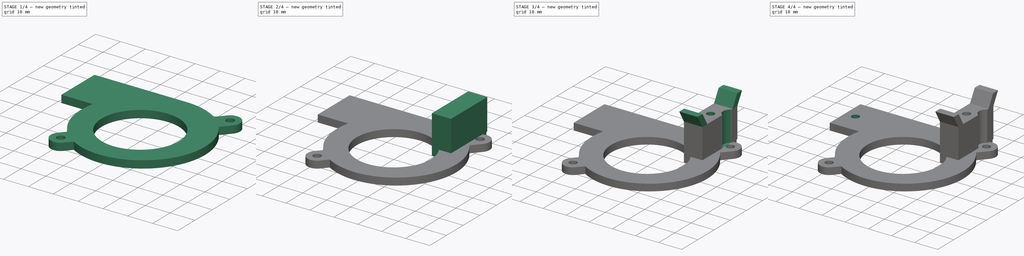
[diagram: build sequence overview — one tinted view per stage of 4, left to right]
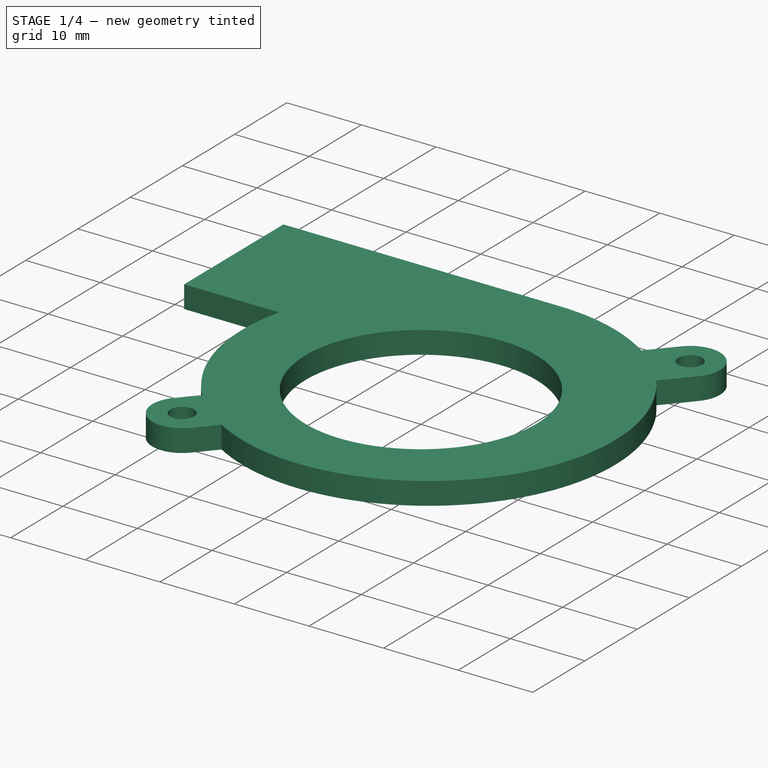
[diagram: stage 1 of 4 — iso view after this stage's code; geometry added in this stage tinted green]
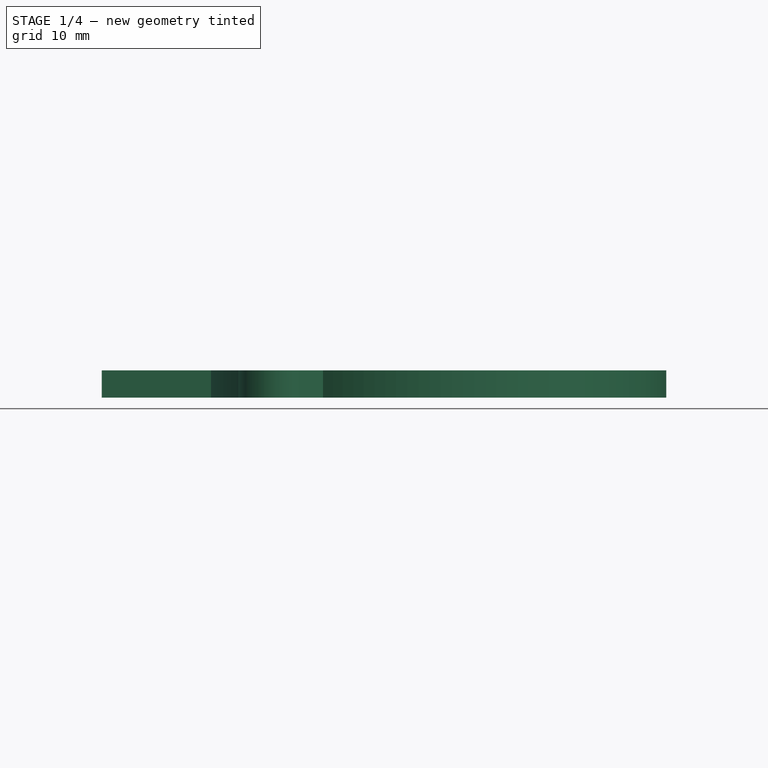
[diagram: stage 1 of 4 — front view after this stage's code; geometry added in this stage tinted green]
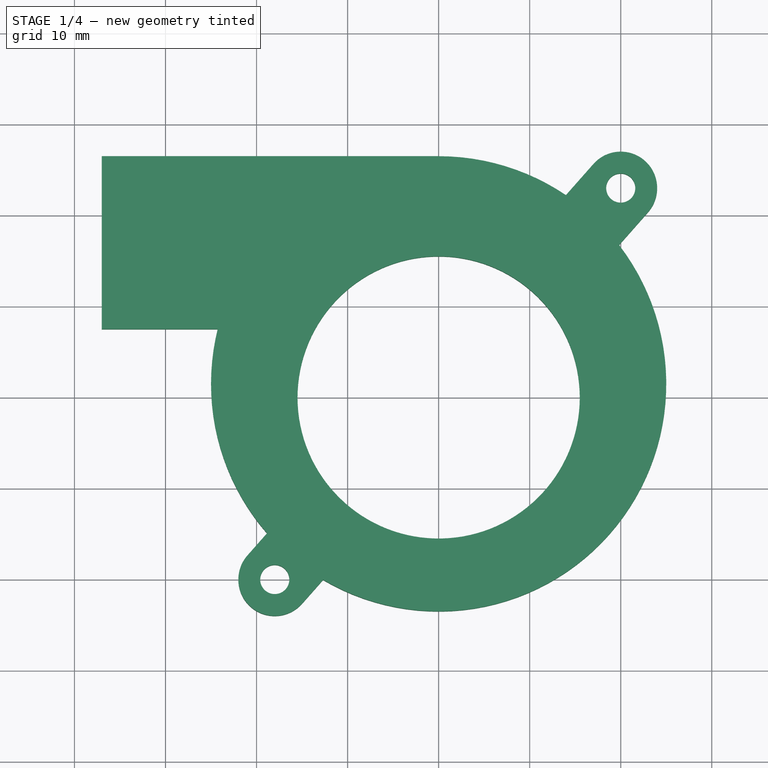
[diagram: stage 1 of 4 — top view after this stage's code; geometry added in this stage tinted green]
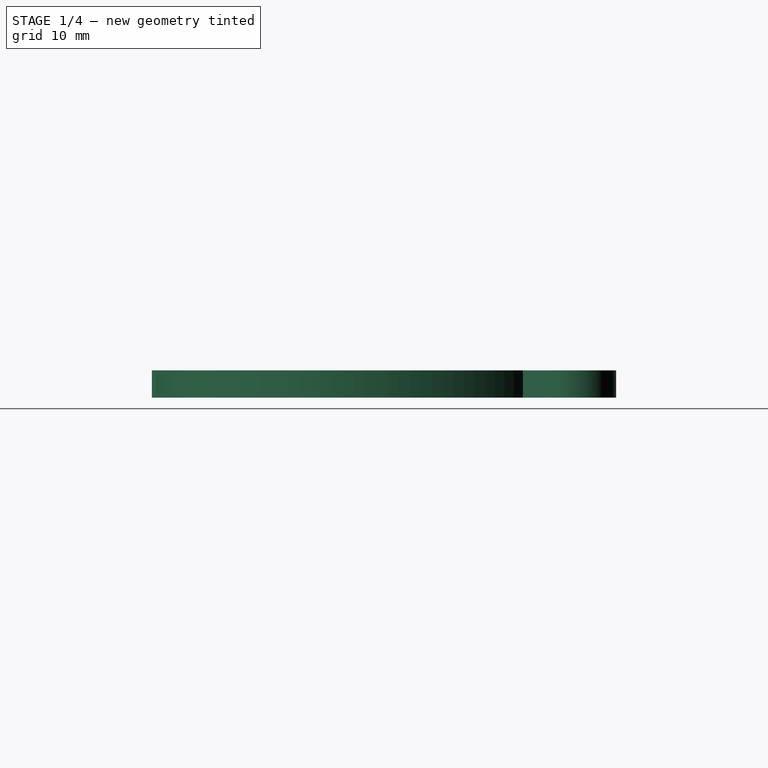
[diagram: stage 1 of 4 — right view after this stage's code; geometry added in this stage tinted green]
FCSTD DOCUMENT  (FreeCAD 0.20R)
Label: radialfan
License: All rights reserved
LicenseURL: http://en.wikipedia.org/wiki/All_rights_reserved
objects: Sketcher::SketchObject×7, PartDesign::Pad×5, PartDesign::Pocket×4, PartDesign::Body×1
note: 26 computed .brp shape members not serialized (recipe doc carries the construction recipe); baked Part::Feature solids carry a one-line shape summary decoded from their .brp

FEATURE [Sketcher::SketchObject] Sketch
  FullyConstrained = true
  MapMode = 5
  Support = -> [XY_Plane]
  sketch-geometry (19):
    g0: Circle CenterX=0 CenterY=0 CenterZ=0 NormalX=0 NormalY=0 NormalZ=1 AngleXU=0 Radius=15.5
    g1: Circle CenterX=-18 CenterY=-20 CenterZ=0 NormalX=0 NormalY=0 NormalZ=1 AngleXU=0 Radius=1.6
    g2: Circle CenterX=20 CenterY=23 CenterZ=0 NormalX=0 NormalY=0 NormalZ=1 AngleXU=0 Radius=1.6
    g3: LineSegment StartX=-25 StartY=26.5 StartZ=0 EndX=-25 EndY=7.5 EndZ=0
    g4: ArcOfCircle CenterX=3.1e-15 CenterY=1.5 CenterZ=0 NormalX=0 NormalY=0 NormalZ=1 AngleXU=0 Radius=25 StartAngle=0.977444 EndAngle=1.5708
    g5: LineSegment StartX=-25 StartY=26.5 StartZ=0 EndX=0 EndY=26.5 EndZ=0
    g6: LineSegment StartX=-25 StartY=7.5 StartZ=0 EndX=-24.2693 EndY=7.5 EndZ=0
    g7: ArcOfCircle CenterX=20 CenterY=23 CenterZ=0 NormalX=0 NormalY=0 NormalZ=1 AngleXU=0 Radius=4 StartAngle=5.55944 EndAngle=8.70103
    g8: LineSegment StartX=17.0027 StartY=25.6488 StartZ=0 EndX=22.9973 EndY=20.3512 EndZ=0
    g9: LineSegment StartX=17.0027 StartY=25.6488 StartZ=0 EndX=13.9786 EndY=22.2268 EndZ=0
    g10: LineSegment StartX=22.9973 StartY=20.3512 StartZ=0 EndX=19.8123 EndY=16.7471 EndZ=0
    g11: ArcOfCircle CenterX=3.1e-15 CenterY=1.5 CenterZ=0 NormalX=0 NormalY=0 NormalZ=1 AngleXU=0 Radius=25 StartAngle=4.17978 EndAngle=6.9391
    g12: ArcOfCircle CenterX=-18 CenterY=-20 CenterZ=0 NormalX=0 NormalY=0 NormalZ=1 AngleXU=0 Radius=4 StartAngle=2.41784 EndAngle=5.55944
    g13: LineSegment StartX=-20.9973 StartY=-17.3512 StartZ=0 EndX=-15.0027 EndY=-22.6488 EndZ=0
    g14: LineSegment StartX=-15.0027 StartY=-22.6488 StartZ=0 EndX=-12.6947 EndY=-20.0371 EndZ=0
    g15: LineSegment StartX=-20.9973 StartY=-17.3512 StartZ=0 EndX=-18.8502 EndY=-14.9216 EndZ=0
    g16: ArcOfCircle CenterX=3.1e-15 CenterY=1.5 CenterZ=0 NormalX=0 NormalY=0 NormalZ=1 AngleXU=0 Radius=25 StartAngle=2.89923 EndAngle=3.85824
    g17: LineSegment StartX=17.0027 StartY=25.6488 StartZ=0 EndX=-20.9973 EndY=-17.3512 EndZ=0
    g18: LineSegment StartX=22.9973 StartY=20.3512 StartZ=0 EndX=-15.0027 EndY=-22.6488 EndZ=0
  constraints (48):
    c: Coincident(g0,g-1)
    c: Diameter(g0) = 31
    c: Equal(g1,g2)
    c: Diameter(g2) = 3.2
    c: DistanceX(g-2,g2) = 20
    c: DistanceY(g-1,g2) = 23
    c: DistanceX(g-2,g1) = -18
    c: DistanceY(g-1,g1) = -20
    c: Vertical(g3)
    c: DistanceX(g-2,g3) = -25
    c: DistanceY(g-1,g3) = 26.5
    c: DistanceY(g3,g3) = 19
    c: Coincident(g5,g3)
    c: PointOnObject(g5,g-2)
    c: Horizontal(g5)
    c: Tangent(g4,g5) = 1.5708
    c: Radius(g4) = 25
    c: Coincident(g6,g3)
    c: Horizontal(g6)
    c: Coincident(g7,g2)
    c: Coincident(g8,g7)
    c: Coincident(g8,g7)
    c: PointOnObject(g2,g8)
    c: Coincident(g9,g4)
    c: Tangent(g9,g7) = -1.5708
    c: Tangent(g10,g7) = 1.5708
    c: Coincident(g11,g4)
    c: Coincident(g11,g10)
    c: Coincident(g12,g1)
    c: Equal(g12,g7)
    c: Coincident(g13,g12)
    c: Coincident(g13,g12)
    c: PointOnObject(g1,g13)
    c: Tangent(g14,g12) = -1.5708
    c: Tangent(g15,g12) = 1.5708
    c: Coincident(g11,g14)
    c: Coincident(g16,g4)
    c: Coincident(g16,g6)
    c: Coincident(g16,g15)
    c: Equal(g16,g11)
    c: Equal(g11,g4)
    c: Distance(g8) = 8
    c: Coincident(g17,g7)
    c: Coincident(g17,g12)
    c: Coincident(g18,g7)
    c: Coincident(g18,g12)
    c: Equal(g18,g17)
    c: Perpendicular(g13,g17)
FEATURE [PartDesign::Pad] Pad
  Direction = (0,0,1)
  Length = 3
  Length2 = 100
  Profile = -> Sketch
  ReferenceAxis = -> Sketch [N_Axis]
  Type = 0
FEATURE [PartDesign::Pad] Pad001
  BaseFeature = -> Pad
  Direction = (-1,0,0)
  Length = 12
  Length2 = 100
  Profile = -> Pad [Face5]
  Refine = true
  Type = 0
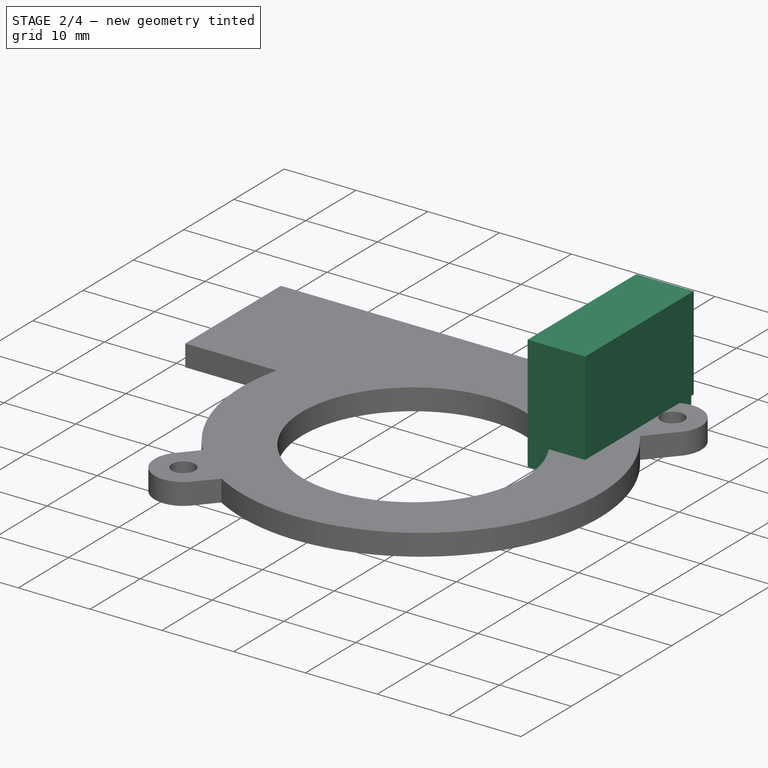
[diagram: stage 2 of 4 — iso view after this stage's code; geometry added in this stage tinted green]
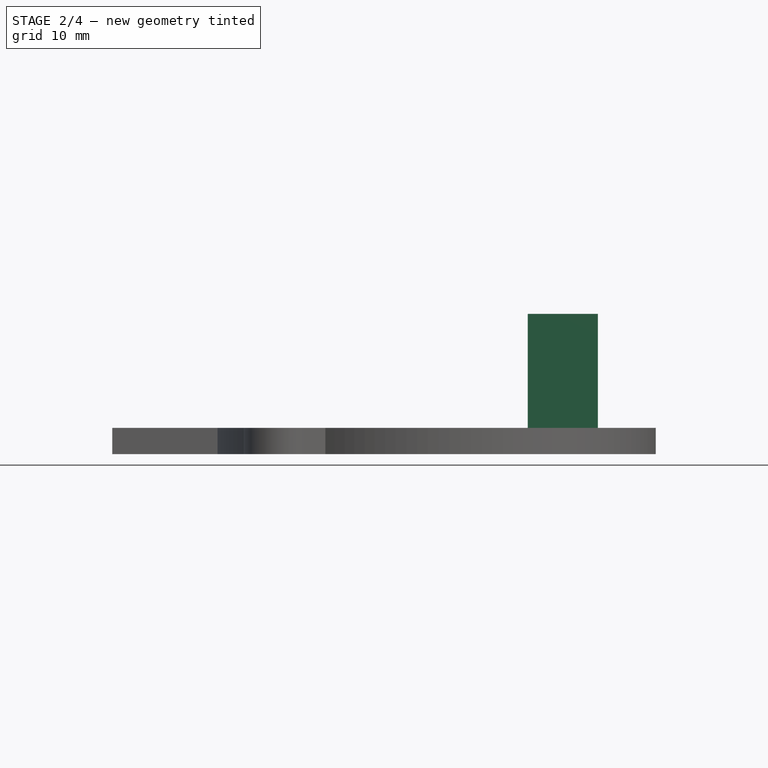
[diagram: stage 2 of 4 — front view after this stage's code; geometry added in this stage tinted green]
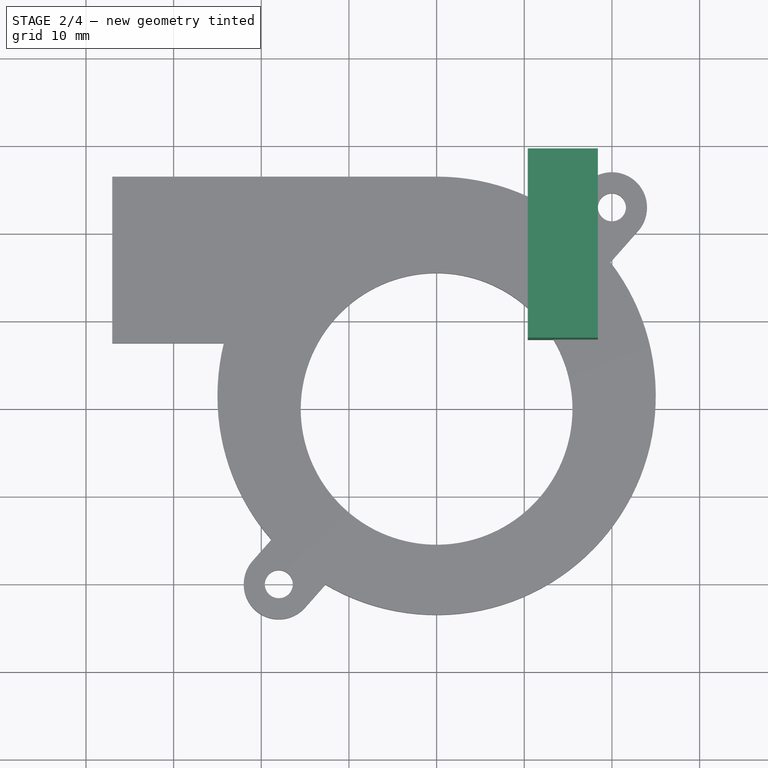
[diagram: stage 2 of 4 — top view after this stage's code; geometry added in this stage tinted green]
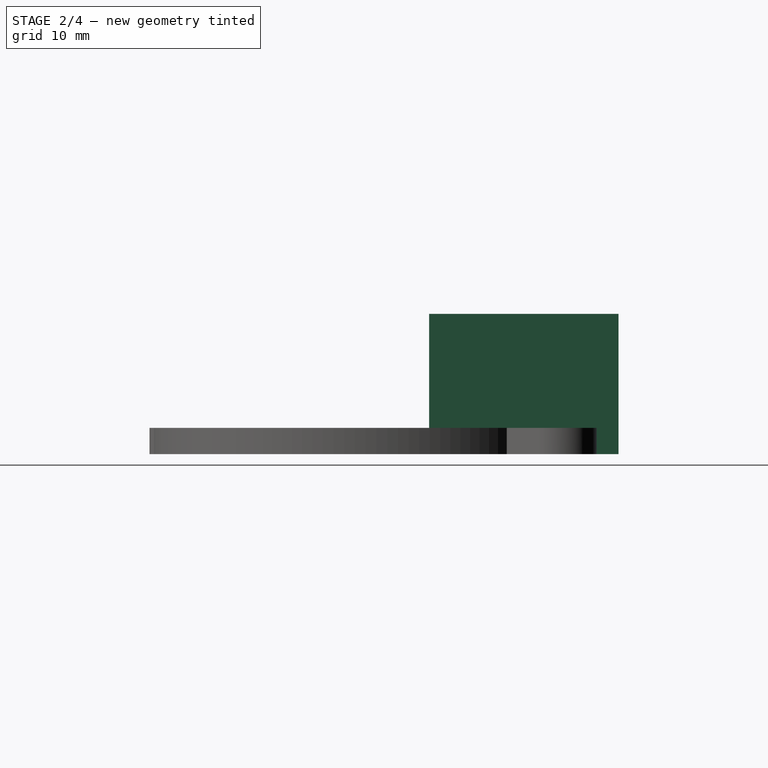
[diagram: stage 2 of 4 — right view after this stage's code; geometry added in this stage tinted green]
FEATURE [Sketcher::SketchObject] Sketch001
  ExternalGeometry = -> [Pad001]
  FullyConstrained = true
  MapMode = 5
  Placement = pos=(0,0,3) rot=(0,0,1;0rad)
  Support = -> [Pad001]
  sketch-geometry (4):
    g0: LineSegment StartX=10.4 StartY=26.5 StartZ=0 EndX=18.4 EndY=26.5 EndZ=0
    g1: LineSegment StartX=18.4 StartY=26.5 StartZ=0 EndX=18.4 EndY=7.9 EndZ=0
    g2: LineSegment StartX=18.4 StartY=7.9 StartZ=0 EndX=10.4 EndY=7.9 EndZ=0
    g3: LineSegment StartX=10.4 StartY=7.9 StartZ=0 EndX=10.4 EndY=26.5 EndZ=0
  constraints (12):
    c: Coincident(g0,g1)
    c: Coincident(g1,g2)
    c: Coincident(g2,g3)
    c: Coincident(g3,g0)
    c: Horizontal(g0)
    c: Horizontal(g2)
    c: Vertical(g1)
    c: Vertical(g3)
    c: PointOnObject(g0,g-3)
    c: Tangent(g-4,g1)
    c: DistanceY(g3,g3) = 18.6
    c: DistanceX(g0,g0) = 8
FEATURE [PartDesign::Pad] Pad002
  BaseFeature = -> Pad001
  Direction = (0,0,1)
  Length = 13
  Length2 = 3
  Profile = -> Sketch001
  ReferenceAxis = -> Sketch001 [N_Axis]
  Refine = true
  Type = 4
FEATURE [PartDesign::Pad] Pad003
  BaseFeature = -> Pad002
  Direction = (0,1,0)
  Length = 3
  Length2 = 100
  Profile = -> Pad002 [Face17]
  Type = 0
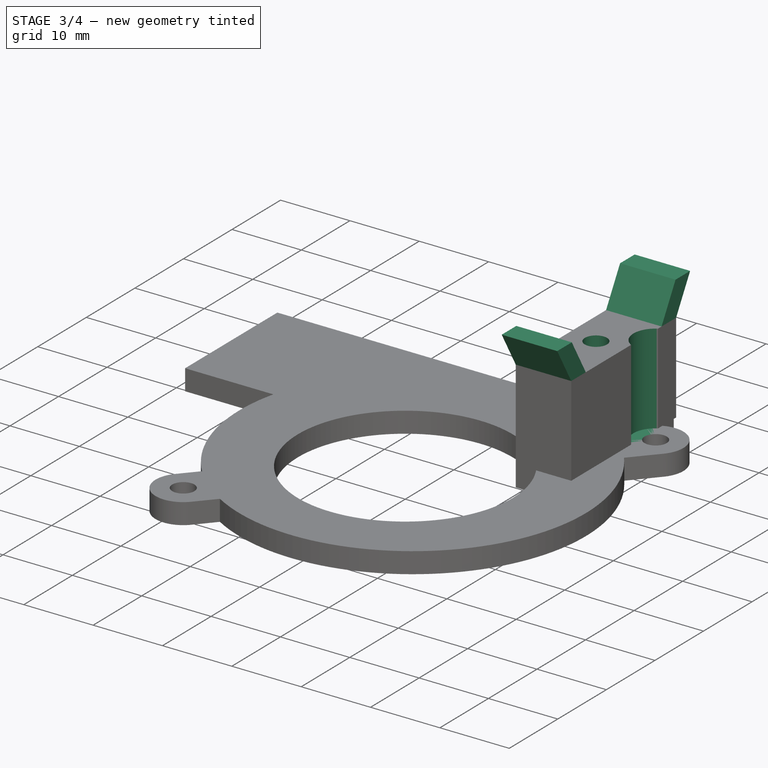
[diagram: stage 3 of 4 — iso view after this stage's code; geometry added in this stage tinted green]
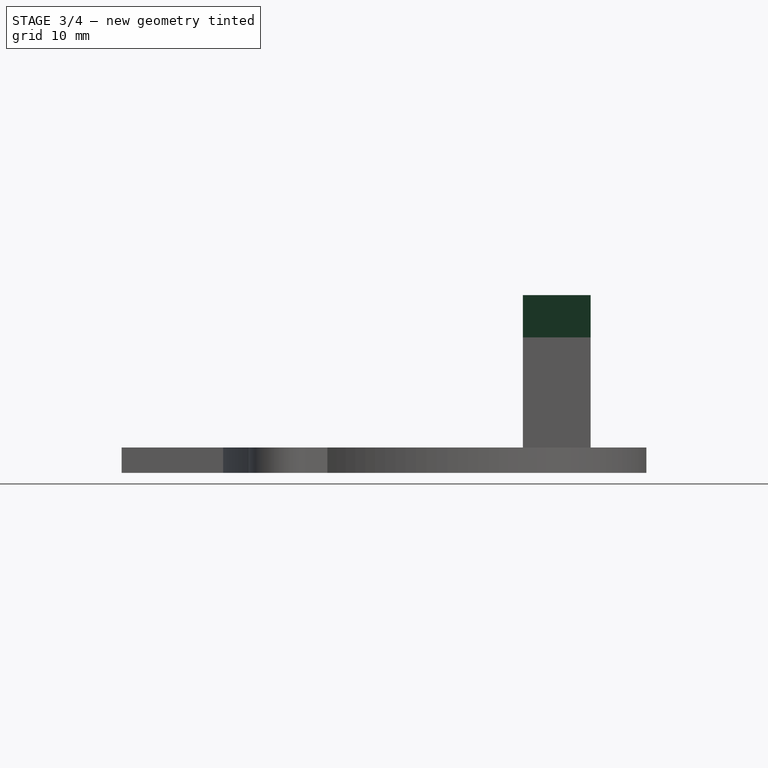
[diagram: stage 3 of 4 — front view after this stage's code; geometry added in this stage tinted green]
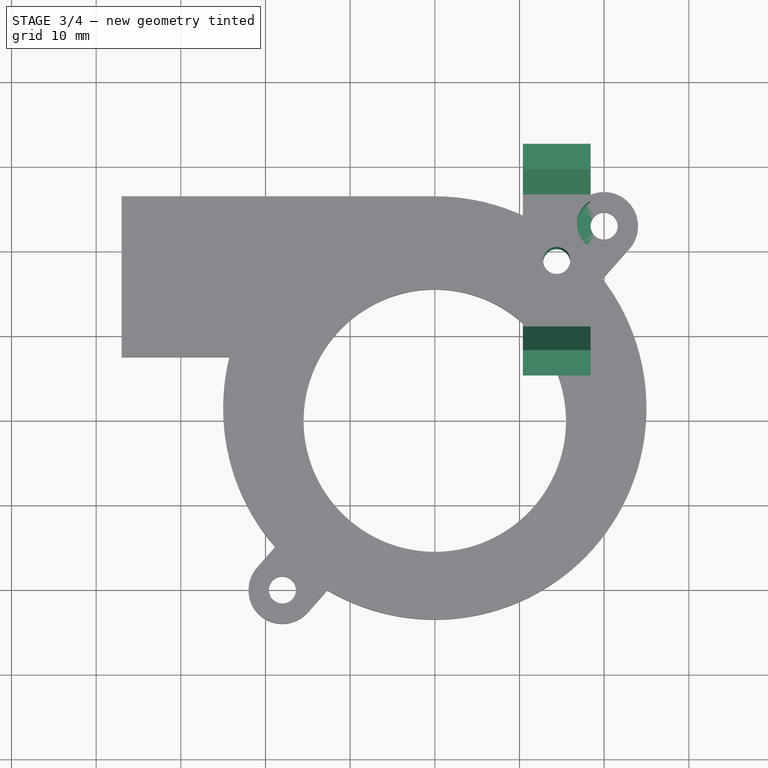
[diagram: stage 3 of 4 — top view after this stage's code; geometry added in this stage tinted green]
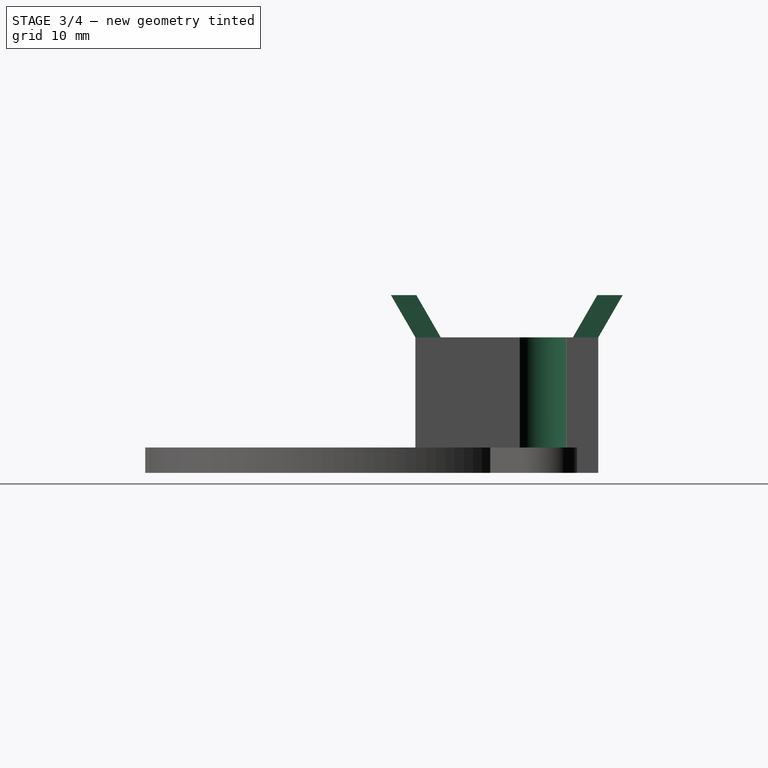
[diagram: stage 3 of 4 — right view after this stage's code; geometry added in this stage tinted green]
FEATURE [Sketcher::SketchObject] Sketch002
  ExternalGeometry = -> [Pad003]
  FullyConstrained = true
  MapMode = 5
  Placement = pos=(18.4,0,0) rot=(0.57735,0.57735,0.57735;2.0944rad)
  Support = -> [Pad003]
  sketch-geometry (8):
    g0: LineSegment StartX=7.9 StartY=16 StartZ=0 EndX=5.01325 EndY=21 EndZ=0
    g1: LineSegment StartX=5.01325 StartY=21 StartZ=0 EndX=8.01325 EndY=21 EndZ=0
    g2: LineSegment StartX=8.01325 StartY=21 StartZ=0 EndX=10.9 EndY=16 EndZ=0
    g3: LineSegment StartX=10.9 StartY=16 StartZ=0 EndX=7.9 EndY=16 EndZ=0
    g4: LineSegment StartX=26.5 StartY=16 StartZ=0 EndX=29.5 EndY=16 EndZ=0
    g5: LineSegment StartX=29.5 StartY=16 StartZ=0 EndX=32.3868 EndY=21 EndZ=0
    g6: LineSegment StartX=32.3868 StartY=21 StartZ=0 EndX=29.3868 EndY=21 EndZ=0
    g7: LineSegment StartX=29.3868 StartY=21 StartZ=0 EndX=26.5 EndY=16 EndZ=0
  constraints (21):
    c: Coincident(g-3,g0)
    c: Coincident(g0,g1)
    c: Horizontal(g1)
    c: Coincident(g1,g2)
    c: PointOnObject(g2,g-3)
    c: Coincident(g2,g3)
    c: Coincident(g3,g0)
    c: Coincident(g-4,g4)
    c: Coincident(g4,g-4)
    c: Coincident(g4,g5)
    c: Coincident(g5,g6)
    c: Horizontal(g6)
    c: Coincident(g6,g7)
    c: Coincident(g7,g4)
    c: Parallel(g7,g5)
    c: Parallel(g0,g2)
    c: Equal(g1,g6)
    c: Angle(g7,g-3) = 2.0944
    c: Angle(g-3,g2) = 2.0944
    c: Distance(g1,g3) = 5
    c: Distance(g6,g4) = 5
FEATURE [PartDesign::Pad] Pad004
  BaseFeature = -> Pad003
  Direction = (1,0,0)
  Length = 8
  Length2 = 100
  Profile = -> Sketch002
  ReferenceAxis = -> Sketch002 [N_Axis]
  Reversed = true
  Type = 0
FEATURE [Sketcher::SketchObject] Sketch003
  ExternalGeometry = -> [Pad004]
  FullyConstrained = true
  MapMode = 5
  Placement = pos=(0,0,16) rot=(0,0,1;0rad)
  Support = -> [Pad004]
  sketch-geometry (3):
    g0: LineSegment StartX=10.4 StartY=26.5 StartZ=0 EndX=18.4 EndY=10.9 EndZ=0
    g1: LineSegment StartX=18.4 StartY=26.5 StartZ=0 EndX=14.4 EndY=18.7 EndZ=0
    g2: Circle CenterX=14.4 CenterY=18.7 CenterZ=0 NormalX=0 NormalY=0 NormalZ=1 AngleXU=0 Radius=1.6
  constraints (7):
    c: Coincident(g0,g-4)
    c: Coincident(g0,g-3)
    c: Coincident(g1,g-3)
    c: PointOnObject(g1,g0)
    c: PointOnObject(g-4,g1)
    c: Coincident(g2,g1)
    c: Radius(g2) = 1.6
FEATURE [PartDesign::Pocket] Pocket
  BaseFeature = -> Pad004
  Direction = (0,0,-1)
  Length = 5
  Length2 = 100
  Profile = -> Sketch003
  ReferenceAxis = -> Sketch003 [N_Axis]
  Type = 1
FEATURE [Sketcher::SketchObject] Sketch004
  ExternalGeometry = -> [Pocket]
  FullyConstrained = true
  MapMode = 5
  Placement = pos=(0,0,16) rot=(0,0,1;0rad)
  Support = -> [Pocket]
  sketch-geometry (1):
    g0: Circle CenterX=20 CenterY=23 CenterZ=0 NormalX=0 NormalY=0 NormalZ=1 AngleXU=0 Radius=3.2
  constraints (2):
    c: Coincident(g0,g-3)
    c: Radius(g0) = 3.2
FEATURE [PartDesign::Pocket] Pocket001
  BaseFeature = -> Pocket
  Direction = (0,0,-1)
  Length = 13
  Length2 = 100
  Profile = -> Sketch004
  ReferenceAxis = -> Sketch004 [N_Axis]
  Refine = true
  Type = 0
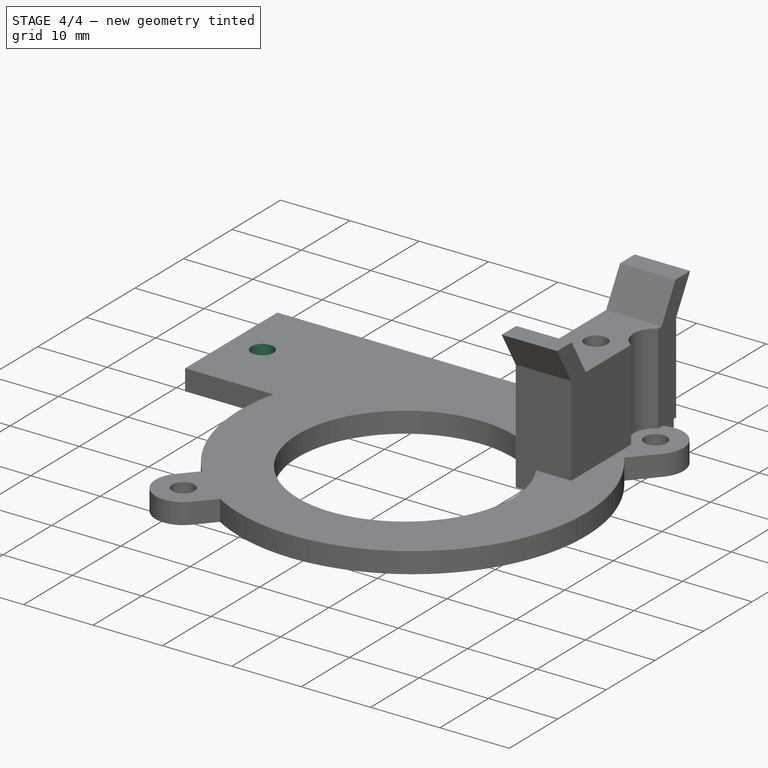
[diagram: stage 4 of 4 — iso view after this stage's code; geometry added in this stage tinted green]
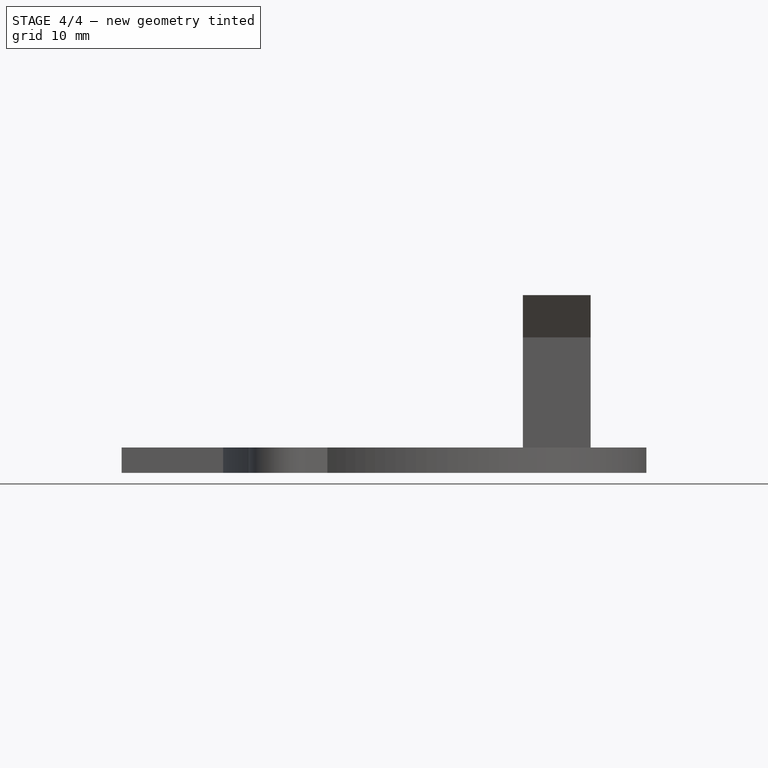
[diagram: stage 4 of 4 — front view after this stage's code; geometry added in this stage tinted green]
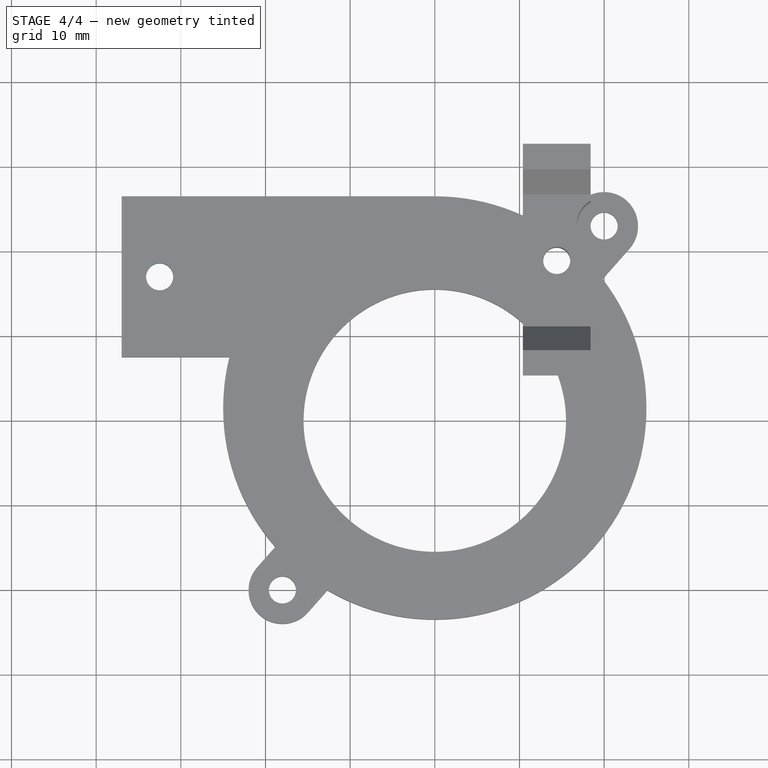
[diagram: stage 4 of 4 — top view after this stage's code; geometry added in this stage tinted green]
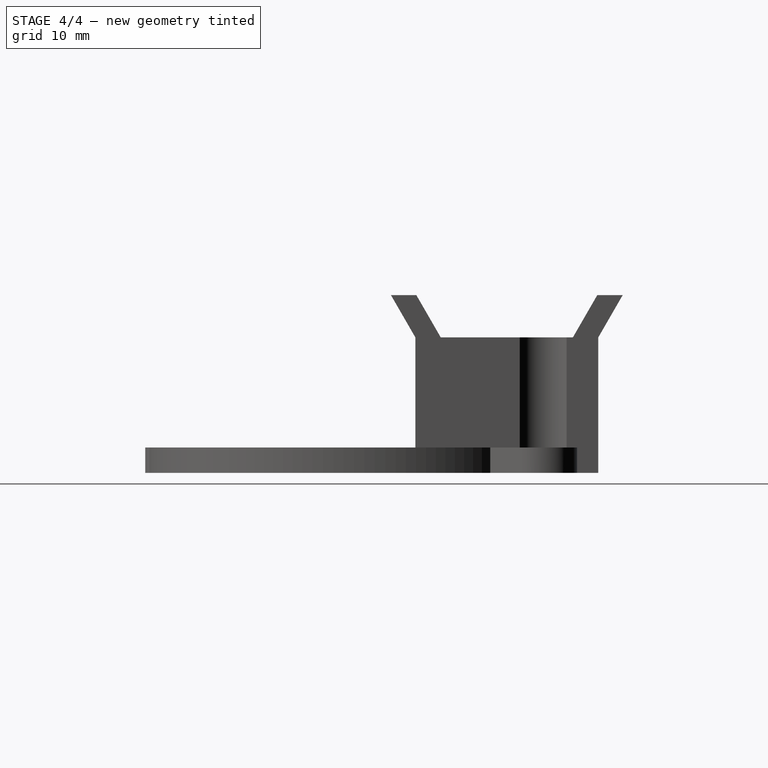
[diagram: stage 4 of 4 — right view after this stage's code; geometry added in this stage tinted green]
FEATURE [Sketcher::SketchObject] Sketch005
  ExternalGeometry = -> [Pocket001]
  FullyConstrained = true
  MapMode = 5
  Placement = pos=(0,0,0) rot=(1,0,0;3.14159rad)
  Support = -> [Pocket001]
  sketch-geometry (1):
    g0: Circle CenterX=14.4 CenterY=-18.7 CenterZ=0 NormalX=0 NormalY=0 NormalZ=1 AngleXU=0 Radius=3.2
  constraints (2):
    c: Coincident(g0,g-3)
    c: Radius(g0) = 3.2
FEATURE [PartDesign::Pocket] Pocket002
  BaseFeature = -> Pocket001
  Direction = (0,0,1)
  Length = 9
  Length2 = 100
  Profile = -> Sketch005
  ReferenceAxis = -> Sketch005 [N_Axis]
  Type = 0
FEATURE [Sketcher::SketchObject] Sketch006
  ExternalGeometry = -> [Pocket002]
  FullyConstrained = true
  MapMode = 5
  Placement = pos=(0,0,0) rot=(1,0,0;3.14159rad)
  Support = -> [Pocket002]
  sketch-geometry (2):
    g0: Circle CenterX=-32.5 CenterY=-17 CenterZ=0 NormalX=0 NormalY=0 NormalZ=1 AngleXU=0 Radius=1.6
    g1: LineSegment StartX=-37 StartY=-17 StartZ=0 EndX=-32.5 EndY=-17 EndZ=0
  constraints (5):
    c: Coincident(g1,g0)
    c: Symmetric(g-3,g-3,g1)
    c: PointOnObject(g1,g-3)
    c: DistanceX(g1,g1) = 4.5
    c: Radius(g0) = 1.6
FEATURE [PartDesign::Pocket] Pocket003
  BaseFeature = -> Pocket002
  Direction = (0,0,1)
  Length = 5
  Length2 = 100
  Profile = -> Sketch006
  ReferenceAxis = -> Sketch006 [N_Axis]
  Type = 1
FEATURE [PartDesign::Body] Body
  Group = -> [Sketch,Pad,Pad001,Sketch001,Pad002,Pad003,Sketch002,Pad004,Sketch003,Pocket,Sketch004,Pocket001,Sketch005,Pocket002,Sketch006,Pocket003]
  Origin = -> Origin
  Tip = -> Pocket003
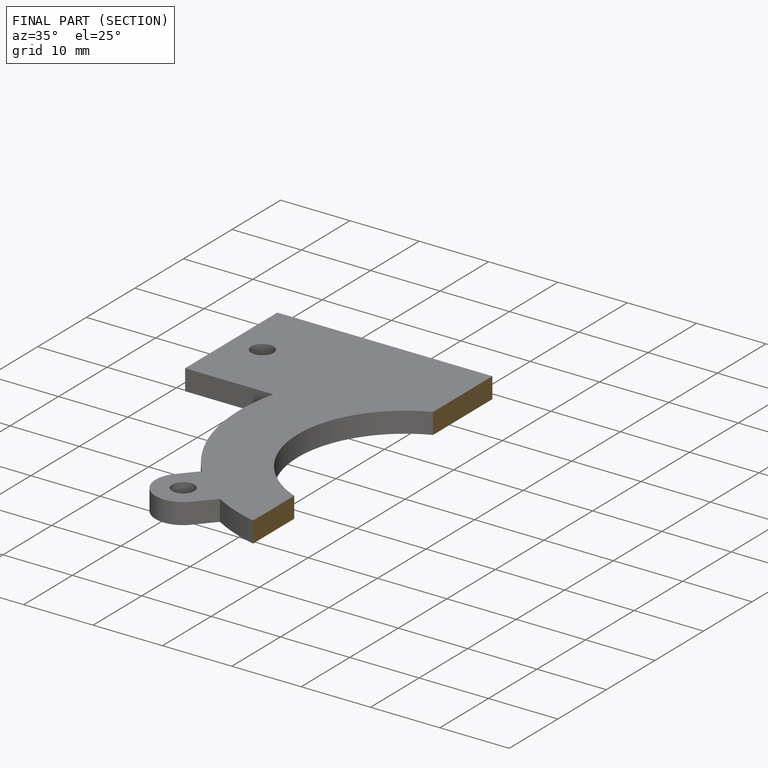
[diagram: finished part — half-section view (interior)]
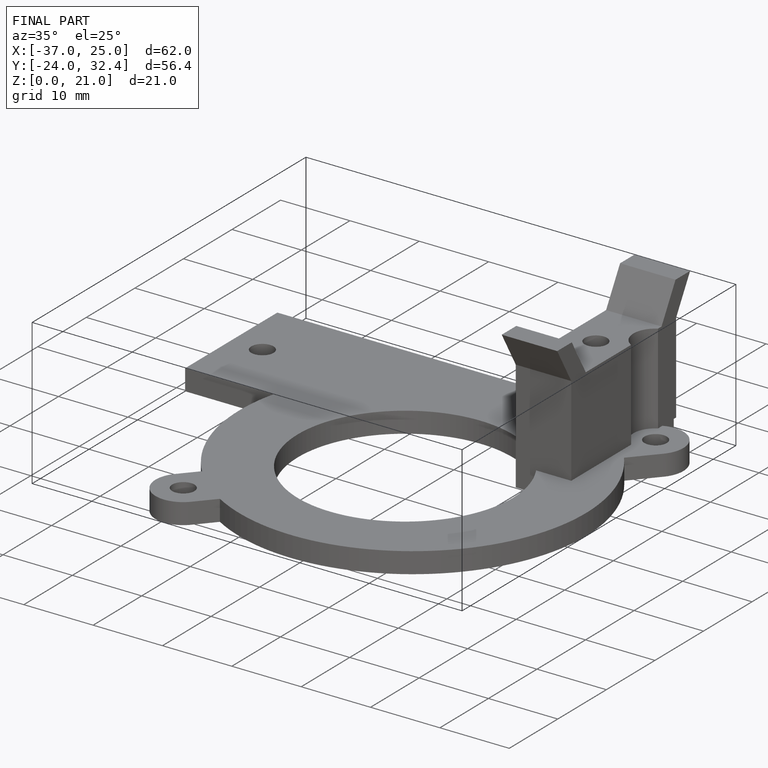
[diagram: finished part — iso view with bounding-box wireframe]
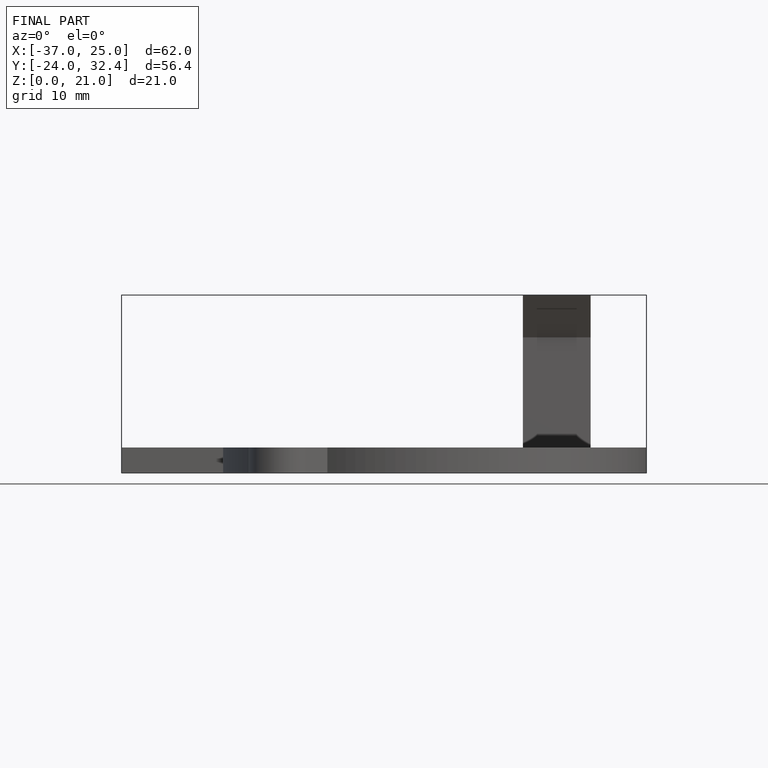
[diagram: finished part — front view with bounding-box wireframe]
